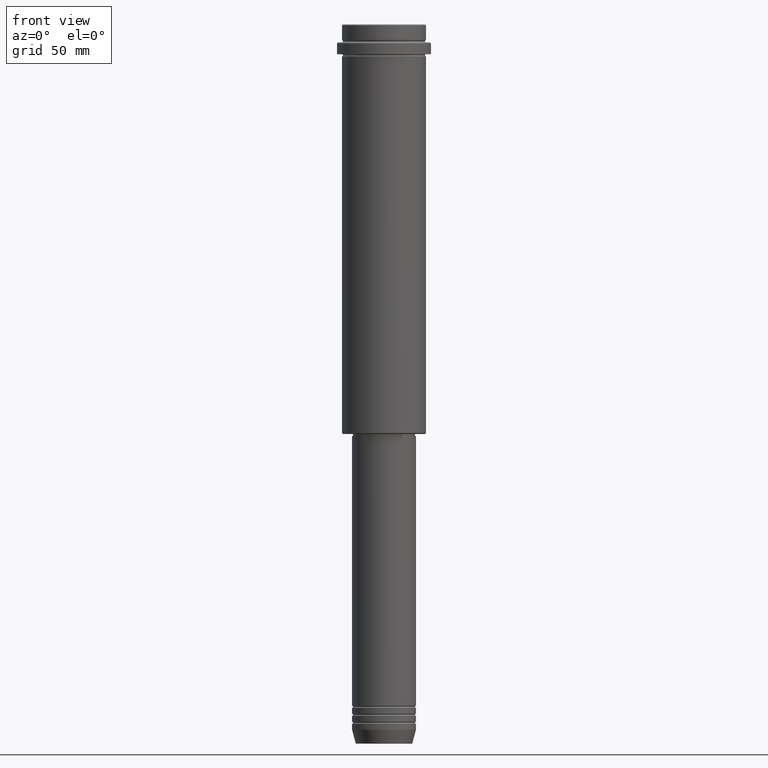
[diagram: clean part render]
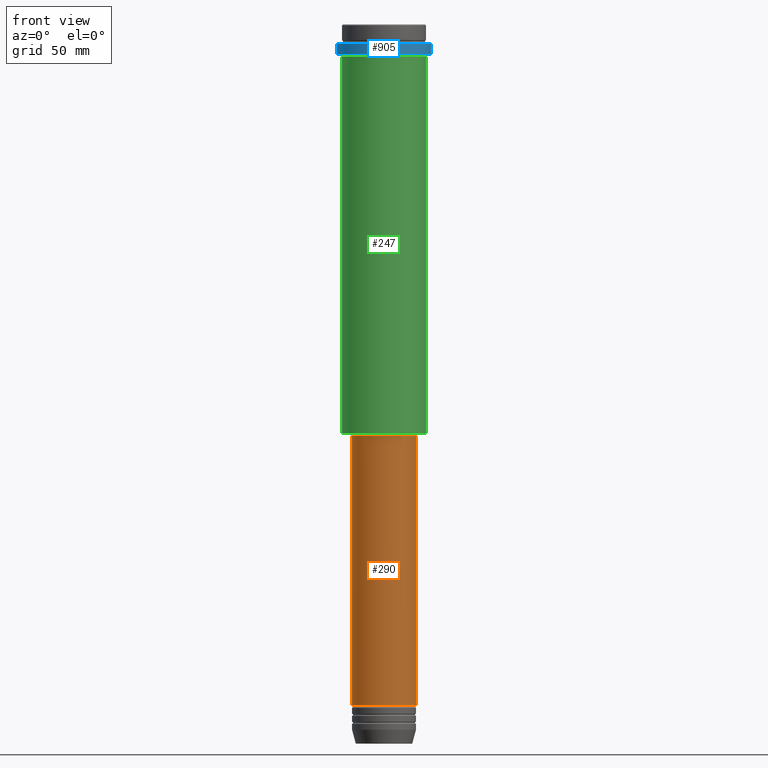
[diagram: same view with three faces highlighted in distinct colors, each labeled with its STEP entity id]
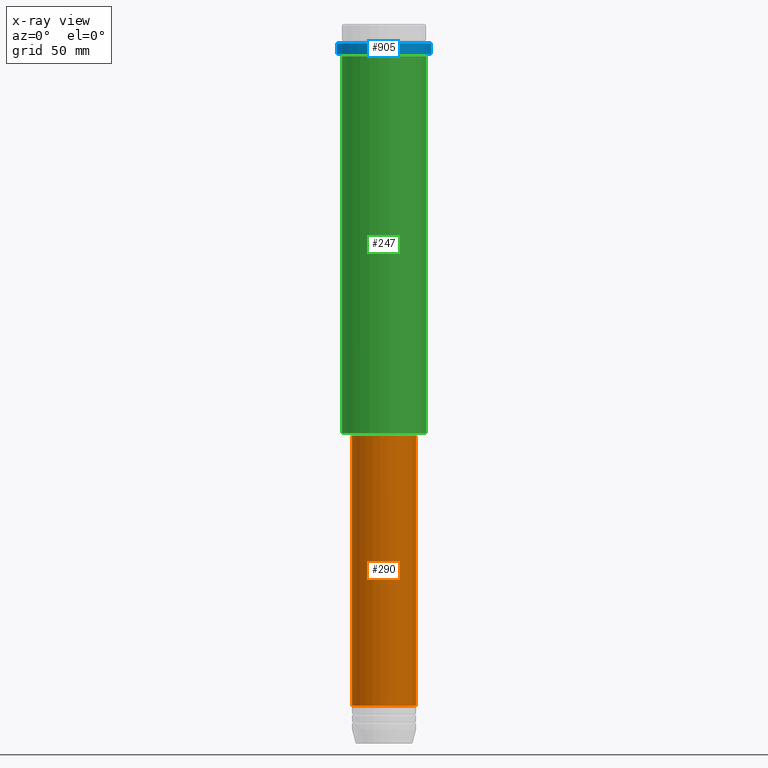
[diagram: x-ray of the same camera — body ghosted, the three highlighted faces saturated]
A machine part, front view with three faces highlighted in distinct colors.
The next image is the same camera in x-ray (body ghosted, the three faces saturated) — at least one of them is partly hidden behind the body in this view.
Their STEP definitions:

[orange] entity #290 — the highlighted cylindrical surface (edge-blend (fillet) strip) has radius 16 mm, axis along (-0, -0, 1).
#23 = AXIS2_PLACEMENT_3D ( 'NONE', #1256, #1370, #267 ) ;
#45 = DIRECTION ( 'NONE',  ( -0.000000000000000000, -0.000000000000000000, 1.000000000000000000 ) ) ;
#99 = VECTOR ( 'NONE', #101, 1000.000000000000000 ) ;
#101 = DIRECTION ( 'NONE',  ( -0.000000000000000000, -0.000000000000000000, 1.000000000000000000 ) ) ;
#118 = VERTEX_POINT ( 'NONE', #585 ) ;
#169 = CARTESIAN_POINT ( 'NONE',  ( -16.00000000000000355, 1.959434878635765526E-15, -205.9999999999999716 ) ) ;
#262 = CARTESIAN_POINT ( 'NONE',  ( 16.00000000000000000, 0.000000000000000000, 0.000000000000000000 ) ) ;
#267 = DIRECTION ( 'NONE',  ( 1.000000000000000000, 0.000000000000000000, 0.000000000000000000 ) ) ;
#275 = LINE ( 'NONE', #262, #1394 ) ;
#285 = EDGE_LOOP ( 'NONE', ( #472, #1272, #1340, #681 ) ) ;
#290 = ADVANCED_FACE ( 'NONE', ( #656 ), #1205, .T. ) ;
#302 = AXIS2_PLACEMENT_3D ( 'NONE', #555, #986, #773 ) ;
#385 = VERTEX_POINT ( 'NONE', #912 ) ;
#401 = CARTESIAN_POINT ( 'NONE',  ( -16.00000000000000000, 1.959434878635765131E-15, 0.000000000000000000 ) ) ;
#435 = EDGE_CURVE ( 'NONE', #118, #385, #1036, .T. ) ;
#444 = EDGE_CURVE ( 'NONE', #385, #959, #275, .T. ) ;
#459 = EDGE_CURVE ( 'NONE', #466, #959, #1266, .T. ) ;
#466 = VERTEX_POINT ( 'NONE', #169 ) ;
#472 = ORIENTED_EDGE ( 'NONE', *, *, #583, .F. ) ;
#555 = CARTESIAN_POINT ( 'NONE',  ( 0.000000000000000000, 0.000000000000000000, 0.000000000000000000 ) ) ;
#583 = EDGE_CURVE ( 'NONE', #118, #466, #1076, .T. ) ;
#585 = CARTESIAN_POINT ( 'NONE',  ( -16.00000000000000000, 1.959434878635765131E-15, -340.9999999999998863 ) ) ;
#597 = AXIS2_PLACEMENT_3D ( 'NONE', #817, #1358, #1262 ) ;
#656 = FACE_OUTER_BOUND ( 'NONE', #285, .T. ) ;
#681 = ORIENTED_EDGE ( 'NONE', *, *, #459, .F. ) ;
#773 = DIRECTION ( 'NONE',  ( 1.000000000000000000, 0.000000000000000000, 0.000000000000000000 ) ) ;
#817 = CARTESIAN_POINT ( 'NONE',  ( 0.000000000000000000, 0.000000000000000000, -340.9999999999998863 ) ) ;
#912 = CARTESIAN_POINT ( 'NONE',  ( 16.00000000000000000, 0.000000000000000000, -340.9999999999998863 ) ) ;
#959 = VERTEX_POINT ( 'NONE', #1088 ) ;
#986 = DIRECTION ( 'NONE',  ( -0.000000000000000000, -0.000000000000000000, 1.000000000000000000 ) ) ;
#1036 = CIRCLE ( 'NONE', #597, 16.00000000000000000 ) ;
#1076 = LINE ( 'NONE', #401, #99 ) ;
#1088 = CARTESIAN_POINT ( 'NONE',  ( 16.00000000000000355, 0.000000000000000000, -205.9999999999999716 ) ) ;
#1205 = CYLINDRICAL_SURFACE ( 'NONE', #302, 16.00000000000000000 ) ;
#1256 = CARTESIAN_POINT ( 'NONE',  ( 0.000000000000000000, 0.000000000000000000, -205.9999999999999716 ) ) ;
#1262 = DIRECTION ( 'NONE',  ( 1.000000000000000000, 0.000000000000000000, 0.000000000000000000 ) ) ;
#1266 = CIRCLE ( 'NONE', #23, 16.00000000000000355 ) ;
#1272 = ORIENTED_EDGE ( 'NONE', *, *, #435, .T. ) ;
#1340 = ORIENTED_EDGE ( 'NONE', *, *, #444, .T. ) ;
#1358 = DIRECTION ( 'NONE',  ( -0.000000000000000000, -0.000000000000000000, 1.000000000000000000 ) ) ;
#1370 = DIRECTION ( 'NONE',  ( -0.000000000000000000, -0.000000000000000000, 1.000000000000000000 ) ) ;
#1394 = VECTOR ( 'NONE', #45, 1000.000000000000000 ) ;

[blue] entity #905 — the highlighted cylindrical surface (partial cylindrical patch) has radius 23.5 mm, axis along (-0, -0, 1).
#19 = DIRECTION ( 'NONE',  ( 1.000000000000000000, 0.000000000000000000, 0.000000000000000000 ) ) ;
#43 = CARTESIAN_POINT ( 'NONE',  ( 0.000000000000000000, 0.000000000000000000, 0.000000000000000000 ) ) ;
#130 = EDGE_LOOP ( 'NONE', ( #786, #557, #1181, #768 ) ) ;
#230 = CARTESIAN_POINT ( 'NONE',  ( 0.000000000000000000, 0.000000000000000000, -9.500000000000001776 ) ) ;
#296 = EDGE_CURVE ( 'NONE', #918, #318, #1374, .T. ) ;
#301 = CARTESIAN_POINT ( 'NONE',  ( 23.50000000000000000, 0.000000000000000000, -9.500000000000001776 ) ) ;
#318 = VERTEX_POINT ( 'NONE', #1233 ) ;
#370 = DIRECTION ( 'NONE',  ( 1.000000000000000000, 0.000000000000000000, 0.000000000000000000 ) ) ;
#383 = DIRECTION ( 'NONE',  ( -0.000000000000000000, -0.000000000000000000, 1.000000000000000000 ) ) ;
#387 = EDGE_CURVE ( 'NONE', #398, #1326, #1170, .T. ) ;
#398 = VERTEX_POINT ( 'NONE', #608 ) ;
#488 = CYLINDRICAL_SURFACE ( 'NONE', #1332, 23.50000000000000000 ) ;
#542 = EDGE_CURVE ( 'NONE', #1326, #918, #731, .T. ) ;
#553 = VECTOR ( 'NONE', #1121, 1000.000000000000000 ) ;
#557 = ORIENTED_EDGE ( 'NONE', *, *, #387, .T. ) ;
#560 = DIRECTION ( 'NONE',  ( 0.000000000000000000, 0.000000000000000000, -1.000000000000000000 ) ) ;
#570 = VECTOR ( 'NONE', #848, 1000.000000000000000 ) ;
#608 = CARTESIAN_POINT ( 'NONE',  ( -23.50000000000000711, 2.877919977996281109E-15, -15.00000000000000178 ) ) ;
#680 = CARTESIAN_POINT ( 'NONE',  ( -23.50000000000000000, 2.877919977996280320E-15, 0.000000000000000000 ) ) ;
#684 = AXIS2_PLACEMENT_3D ( 'NONE', #230, #560, #19 ) ;
#697 = FACE_OUTER_BOUND ( 'NONE', #130, .T. ) ;
#731 = LINE ( 'NONE', #1069, #570 ) ;
#768 = ORIENTED_EDGE ( 'NONE', *, *, #296, .T. ) ;
#786 = ORIENTED_EDGE ( 'NONE', *, *, #1202, .F. ) ;
#798 = DIRECTION ( 'NONE',  ( -0.000000000000000000, -0.000000000000000000, 1.000000000000000000 ) ) ;
#848 = DIRECTION ( 'NONE',  ( -0.000000000000000000, -0.000000000000000000, 1.000000000000000000 ) ) ;
#857 = AXIS2_PLACEMENT_3D ( 'NONE', #931, #798, #370 ) ;
#905 = ADVANCED_FACE ( 'NONE', ( #697 ), #488, .T. ) ;
#918 = VERTEX_POINT ( 'NONE', #301 ) ;
#931 = CARTESIAN_POINT ( 'NONE',  ( 0.000000000000000000, 0.000000000000000000, -15.00000000000000178 ) ) ;
#937 = DIRECTION ( 'NONE',  ( 1.000000000000000000, 0.000000000000000000, 0.000000000000000000 ) ) ;
#1067 = CARTESIAN_POINT ( 'NONE',  ( 23.50000000000000355, 0.000000000000000000, -15.00000000000000178 ) ) ;
#1069 = CARTESIAN_POINT ( 'NONE',  ( 23.50000000000000000, 0.000000000000000000, 0.000000000000000000 ) ) ;
#1121 = DIRECTION ( 'NONE',  ( -0.000000000000000000, -0.000000000000000000, 1.000000000000000000 ) ) ;
#1170 = CIRCLE ( 'NONE', #857, 23.50000000000000355 ) ;
#1181 = ORIENTED_EDGE ( 'NONE', *, *, #542, .T. ) ;
#1202 = EDGE_CURVE ( 'NONE', #398, #318, #1211, .T. ) ;
#1211 = LINE ( 'NONE', #680, #553 ) ;
#1233 = CARTESIAN_POINT ( 'NONE',  ( -23.50000000000000000, 2.877919977996280320E-15, -9.500000000000001776 ) ) ;
#1326 = VERTEX_POINT ( 'NONE', #1067 ) ;
#1332 = AXIS2_PLACEMENT_3D ( 'NONE', #43, #383, #937 ) ;
#1374 = CIRCLE ( 'NONE', #684, 23.50000000000000000 ) ;

[green] entity #247 — the highlighted cylindrical surface (partial cylindrical patch) has radius 21 mm, axis along (-0, -0, 1).
#44 = ORIENTED_EDGE ( 'NONE', *, *, #475, .F. ) ;
#49 = CIRCLE ( 'NONE', #162, 20.99999999999999645 ) ;
#114 = CARTESIAN_POINT ( 'NONE',  ( -20.99999999999999645, 2.571758278209441267E-15, -204.5000000000000853 ) ) ;
#123 = EDGE_CURVE ( 'NONE', #1327, #867, #726, .T. ) ;
#132 = CARTESIAN_POINT ( 'NONE',  ( 20.99999999999999645, 0.000000000000000000, -16.00000000000000355 ) ) ;
#154 = ORIENTED_EDGE ( 'NONE', *, *, #508, .F. ) ;
#162 = AXIS2_PLACEMENT_3D ( 'NONE', #599, #679, #1120 ) ;
#201 = ORIENTED_EDGE ( 'NONE', *, *, #123, .T. ) ;
#202 = CARTESIAN_POINT ( 'NONE',  ( 0.000000000000000000, 0.000000000000000000, 0.000000000000000000 ) ) ;
#247 = ADVANCED_FACE ( 'NONE', ( #423 ), #1380, .T. ) ;
#264 = CARTESIAN_POINT ( 'NONE',  ( 20.99999999999999645, 0.000000000000000000, 0.000000000000000000 ) ) ;
#339 = ORIENTED_EDGE ( 'NONE', *, *, #879, .T. ) ;
#423 = FACE_OUTER_BOUND ( 'NONE', #1209, .T. ) ;
#475 = EDGE_CURVE ( 'NONE', #1112, #867, #49, .T. ) ;
#508 = EDGE_CURVE ( 'NONE', #802, #1112, #527, .T. ) ;
#527 = LINE ( 'NONE', #747, #664 ) ;
#592 = VECTOR ( 'NONE', #1160, 1000.000000000000000 ) ;
#599 = CARTESIAN_POINT ( 'NONE',  ( 0.000000000000000000, 0.000000000000000000, -16.00000000000000355 ) ) ;
#664 = VECTOR ( 'NONE', #1166, 1000.000000000000000 ) ;
#679 = DIRECTION ( 'NONE',  ( -0.000000000000000000, -0.000000000000000000, 1.000000000000000000 ) ) ;
#683 = CARTESIAN_POINT ( 'NONE',  ( 0.000000000000000000, 0.000000000000000000, -204.5000000000000853 ) ) ;
#726 = LINE ( 'NONE', #264, #592 ) ;
#747 = CARTESIAN_POINT ( 'NONE',  ( -20.99999999999999645, 2.571758278209441267E-15, 0.000000000000000000 ) ) ;
#802 = VERTEX_POINT ( 'NONE', #114 ) ;
#820 = DIRECTION ( 'NONE',  ( -1.000000000000000000, 0.000000000000000000, 0.000000000000000000 ) ) ;
#867 = VERTEX_POINT ( 'NONE', #132 ) ;
#879 = EDGE_CURVE ( 'NONE', #802, #1327, #880, .T. ) ;
#880 = CIRCLE ( 'NONE', #1198, 20.99999999999999645 ) ;
#926 = AXIS2_PLACEMENT_3D ( 'NONE', #202, #1177, #1196 ) ;
#1021 = CARTESIAN_POINT ( 'NONE',  ( -20.99999999999999645, 2.571758278209441267E-15, -16.00000000000000355 ) ) ;
#1112 = VERTEX_POINT ( 'NONE', #1021 ) ;
#1120 = DIRECTION ( 'NONE',  ( 1.000000000000000000, 0.000000000000000000, 0.000000000000000000 ) ) ;
#1160 = DIRECTION ( 'NONE',  ( -0.000000000000000000, -0.000000000000000000, 1.000000000000000000 ) ) ;
#1166 = DIRECTION ( 'NONE',  ( -0.000000000000000000, -0.000000000000000000, 1.000000000000000000 ) ) ;
#1177 = DIRECTION ( 'NONE',  ( -0.000000000000000000, -0.000000000000000000, 1.000000000000000000 ) ) ;
#1196 = DIRECTION ( 'NONE',  ( 1.000000000000000000, 0.000000000000000000, 0.000000000000000000 ) ) ;
#1198 = AXIS2_PLACEMENT_3D ( 'NONE', #683, #1244, #820 ) ;
#1209 = EDGE_LOOP ( 'NONE', ( #154, #339, #201, #44 ) ) ;
#1244 = DIRECTION ( 'NONE',  ( -0.000000000000000000, -0.000000000000000000, 1.000000000000000000 ) ) ;
#1327 = VERTEX_POINT ( 'NONE', #1407 ) ;
#1380 = CYLINDRICAL_SURFACE ( 'NONE', #926, 20.99999999999999645 ) ;
#1407 = CARTESIAN_POINT ( 'NONE',  ( 20.99999999999999645, 0.000000000000000000, -204.5000000000000853 ) ) ;